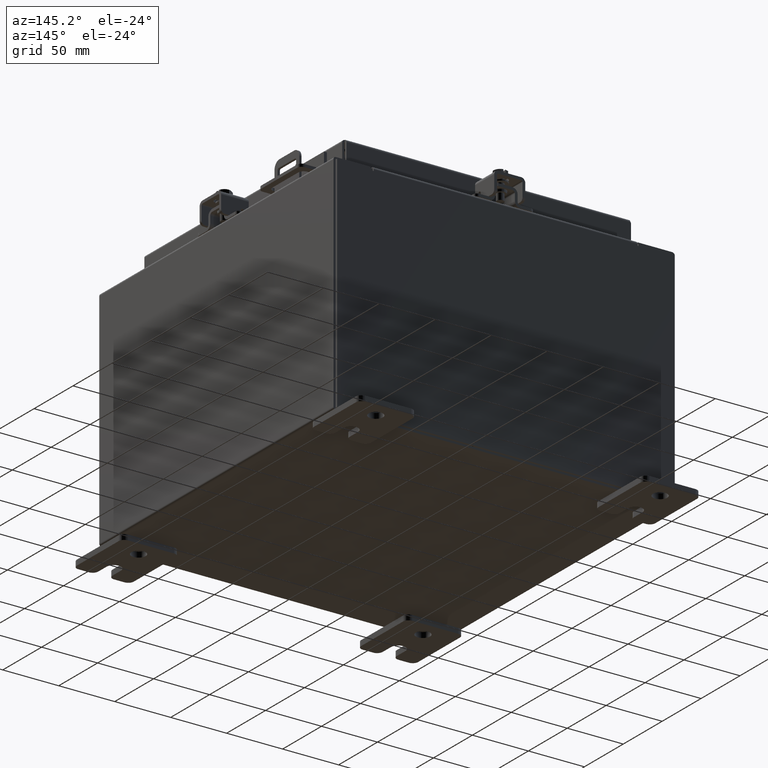
[diagram: clean part render]
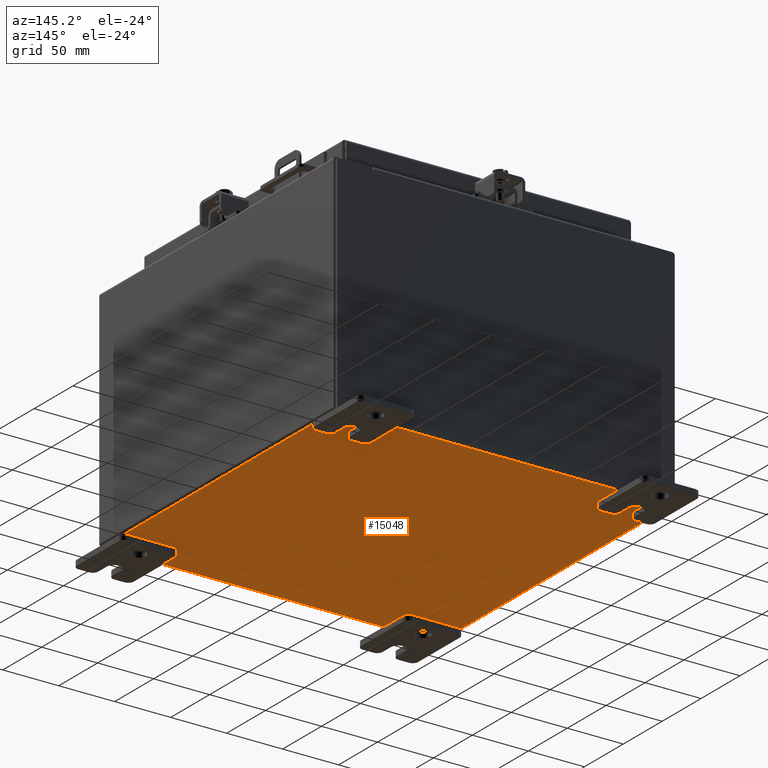
[diagram: same view with one face highlighted and labeled with its STEP entity id]
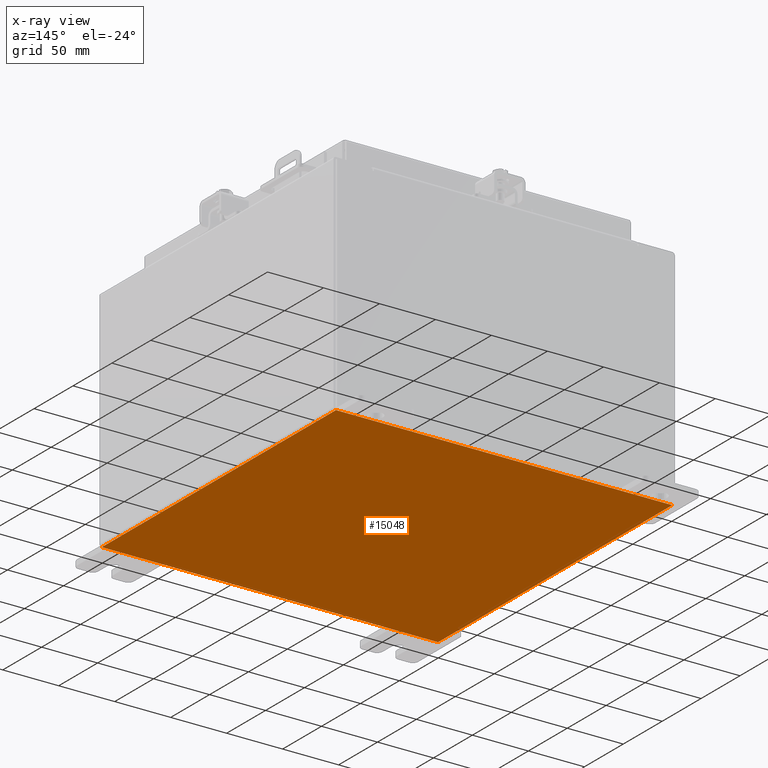
[diagram: x-ray of the same camera — body ghosted, the highlighted face saturated]
A machine part, auxiliary view. The second image highlights one B-rep face of the part: STEP entity #15048.
The next image is the same camera in x-ray: the body ghosted, the highlighted face saturated — about 0% of this face is hidden behind the body in this view.
In plain terms, the highlighted planar face has unit normal (0, 0, -1).
Its self-contained STEP definition (entity closure, byte-faithful):
#105 = DIRECTION ( 'NONE',  ( 1.000000000000000000, 0.0000000000000000000, 0.0000000000000000000 ) ) ;
#360 = CARTESIAN_POINT ( 'NONE',  ( -5.912299999999999200, -5.925299999999999100, -0.07469999999999996100 ) ) ;
#388 = CARTESIAN_POINT ( 'NONE',  ( 5.912300000000001000, 5.925299999999999100, -0.07469999999999996100 ) ) ;
#1529 = LINE ( 'NONE', #388, #20188 ) ;
#2289 = CARTESIAN_POINT ( 'NONE',  ( 0.0000000000000000000, 0.0000000000000000000, -0.07469999999999998900 ) ) ;
#2330 = EDGE_LOOP ( 'NONE', ( #15036, #9867, #5916, #3876 ) ) ;
#2359 = DIRECTION ( 'NONE',  ( -1.000000000000000000, 0.0000000000000000000, -0.0000000000000000000 ) ) ;
#3134 = LINE ( 'NONE', #21735, #7387 ) ;
#3876 = ORIENTED_EDGE ( 'NONE', *, *, #5733, .T. ) ;
#5124 = DIRECTION ( 'NONE',  ( -1.000000000000000000, -0.0000000000000000000, -0.0000000000000000000 ) ) ;
#5733 = EDGE_CURVE ( 'NONE', #9849, #6535, #1529, .T. ) ;
#5830 = EDGE_CURVE ( 'NONE', #15643, #15577, #13698, .T. ) ;
#5916 = ORIENTED_EDGE ( 'NONE', *, *, #17370, .F. ) ;
#6502 = EDGE_CURVE ( 'NONE', #15643, #6535, #3134, .T. ) ;
#6535 = VERTEX_POINT ( 'NONE', #10934 ) ;
#7387 = VECTOR ( 'NONE', #105, 39.37007874015748100 ) ;
#7729 = FACE_OUTER_BOUND ( 'NONE', #2330, .T. ) ;
#8873 = VECTOR ( 'NONE', #22175, 39.37007874015748100 ) ;
#9849 = VERTEX_POINT ( 'NONE', #9958 ) ;
#9867 = ORIENTED_EDGE ( 'NONE', *, *, #5830, .T. ) ;
#9958 = CARTESIAN_POINT ( 'NONE',  ( 5.912300000000001000, 5.925299999999998200, -0.07469999999999996100 ) ) ;
#10504 = CARTESIAN_POINT ( 'NONE',  ( -5.999999999999999100, 5.925299999999999100, -0.07469999999999998900 ) ) ;
#10934 = CARTESIAN_POINT ( 'NONE',  ( 5.912299999999996600, -5.925300000000001800, -0.07469999999999998900 ) ) ;
#13195 = DIRECTION ( 'NONE',  ( 0.0000000000000000000, 0.0000000000000000000, -1.000000000000000000 ) ) ;
#13698 = LINE ( 'NONE', #15103, #8873 ) ;
#14864 = DIRECTION ( 'NONE',  ( -0.0000000000000000000, -1.000000000000000000, -0.0000000000000000000 ) ) ;
#14935 = PLANE ( 'NONE',  #20160 ) ;
#15036 = ORIENTED_EDGE ( 'NONE', *, *, #6502, .F. ) ;
#15048 = ADVANCED_FACE ( 'NONE', ( #7729 ), #14935, .T. ) ;
#15103 = CARTESIAN_POINT ( 'NONE',  ( -5.912299999999999200, -5.925300000000001800, -0.07469999999999996100 ) ) ;
#15577 = VERTEX_POINT ( 'NONE', #20030 ) ;
#15643 = VERTEX_POINT ( 'NONE', #360 ) ;
#17370 = EDGE_CURVE ( 'NONE', #9849, #15577, #22924, .T. ) ;
#20030 = CARTESIAN_POINT ( 'NONE',  ( -5.912299999999999200, 5.925299999999999100, -0.07469999999999998900 ) ) ;
#20160 = AXIS2_PLACEMENT_3D ( 'NONE', #2289, #13195, #2359 ) ;
#20188 = VECTOR ( 'NONE', #14864, 39.37007874015748100 ) ;
#21735 = CARTESIAN_POINT ( 'NONE',  ( -5.999999999999999100, -5.925300000000001800, -0.07469999999999998900 ) ) ;
#22175 = DIRECTION ( 'NONE',  ( -0.0000000000000000000, 1.000000000000000000, -0.0000000000000000000 ) ) ;
#22363 = VECTOR ( 'NONE', #5124, 39.37007874015748100 ) ;
#22924 = LINE ( 'NONE', #10504, #22363 ) ;